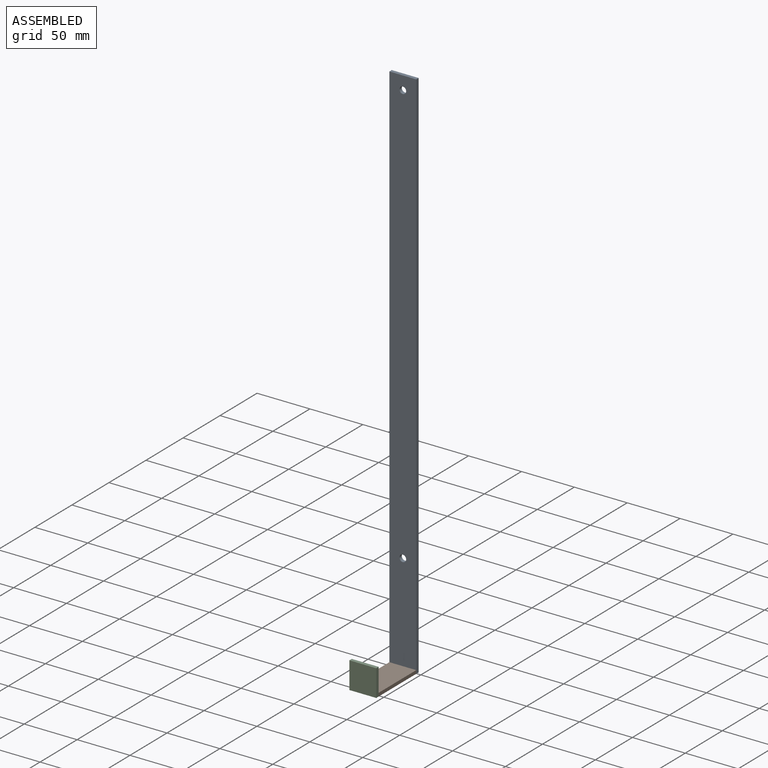
[diagram: assembled view]
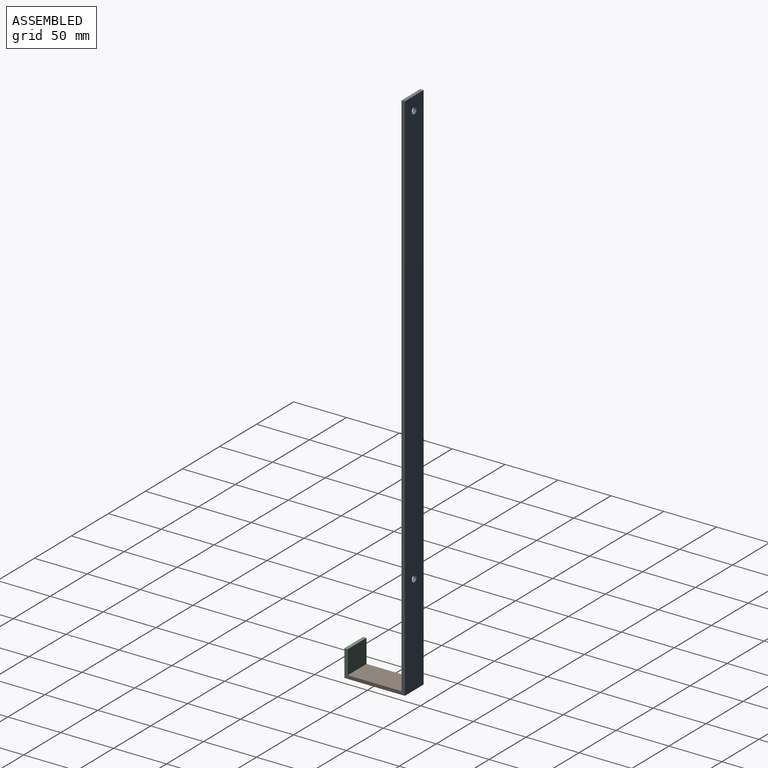
[diagram: assembled view, second angle]
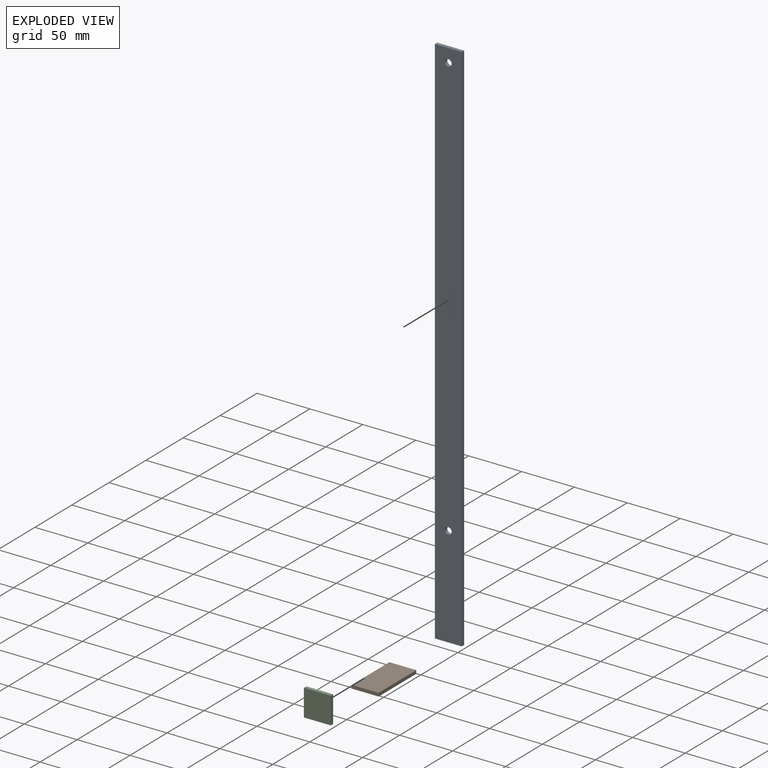
[diagram: exploded view]
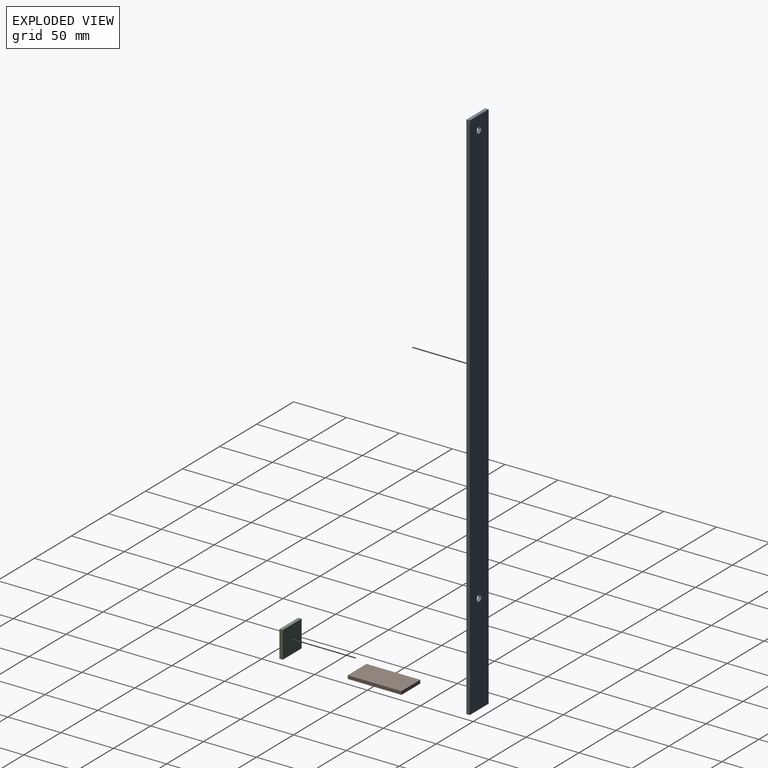
[diagram: exploded view, second angle]
ASSEMBLY  parts=3 mates=2
PART A: 8 faces, bbox 25.4x3.2x508 mm
  f0: plane 508x3.18mm, normal (-1,0,0), area 1612.9mm2, adj f1,f3,f4,f5
  f1: plane 25.4x3.18mm, normal (0,0,-1), area 80.6mm2, adj f0,f2,f4,f5
  f2: plane 508x3.18mm, normal (1,0,0), area 1612.9mm2, adj f1,f3,f4,f5
  f3: plane 25.4x3.18mm, normal (0,0,1), area 80.6mm2, adj f0,f2,f4,f5
  f4: plane 508x25.4mm, normal (0,-1,0), area 12839.9mm2, adj f0,f1,f2,f3,f6,f7
  f5: plane 508x25.4mm, normal (0,1,0), area 12839.9mm2, adj f0,f1,f2,f3,f6,f7
  f6: cylinder r=3.17mm len=6.35mm, axis (0,-1,0), area 63.3mm2, adj f4,f5
  f7: cylinder r=3.17mm len=6.35mm, axis (0,-1,0), area 63.3mm2, adj f4,f5
PART B: 6 faces, bbox 25.4x3.2x50.8 mm
  f0: plane 50.8x3.18mm, normal (-1,0,0), area 161.3mm2, adj f1,f3,f4,f5
  f1: plane 25.4x3.18mm, normal (0,0,-1), area 80.6mm2, adj f0,f2,f4,f5
  f2: plane 50.8x3.18mm, normal (1,0,0), area 161.3mm2, adj f1,f3,f4,f5
  f3: plane 25.4x3.18mm, normal (0,0,1), area 80.6mm2, adj f0,f2,f4,f5
  f4: plane 50.8x25.4mm, normal (0,-1,0), area 1290.3mm2, adj f0,f1,f2,f3
  f5: plane 50.8x25.4mm, normal (0,1,0), area 1290.3mm2, adj f0,f1,f2,f3
PART C: 6 faces, bbox 25.4x3.2x25.4 mm
  f0: plane 25.4x3.18mm, normal (-1,0,0), area 80.6mm2, adj f1,f3,f4,f5
  f1: plane 25.4x3.18mm, normal (0,0,-1), area 80.6mm2, adj f0,f2,f4,f5
  f2: plane 25.4x3.18mm, normal (1,0,0), area 80.6mm2, adj f1,f3,f4,f5
  f3: plane 25.4x3.18mm, normal (0,0,1), area 80.6mm2, adj f0,f2,f4,f5
  f4: plane 25.4x25.4mm, normal (0,-1,0), area 645.2mm2, adj f0,f1,f2,f3
  f5: plane 25.4x25.4mm, normal (0,1,0), area 645.2mm2, adj f0,f1,f2,f3
PLACE A t=(-269.93,139.14,42.72)mm
PLACE B rot(axis=(-1,0,0),90deg) t=(-207.61,85.16,42.72)mm
PLACE C t=(-151.21,85.16,42.72)mm
MATE fastened B.f1 <-> C.f5  axis (0,-1,0) through (-257.23,85.16,42.72)mm
MATE fastened A.f4 <-> B.f3  axis (0,-1,0) through (-257.23,135.96,42.72)mm
